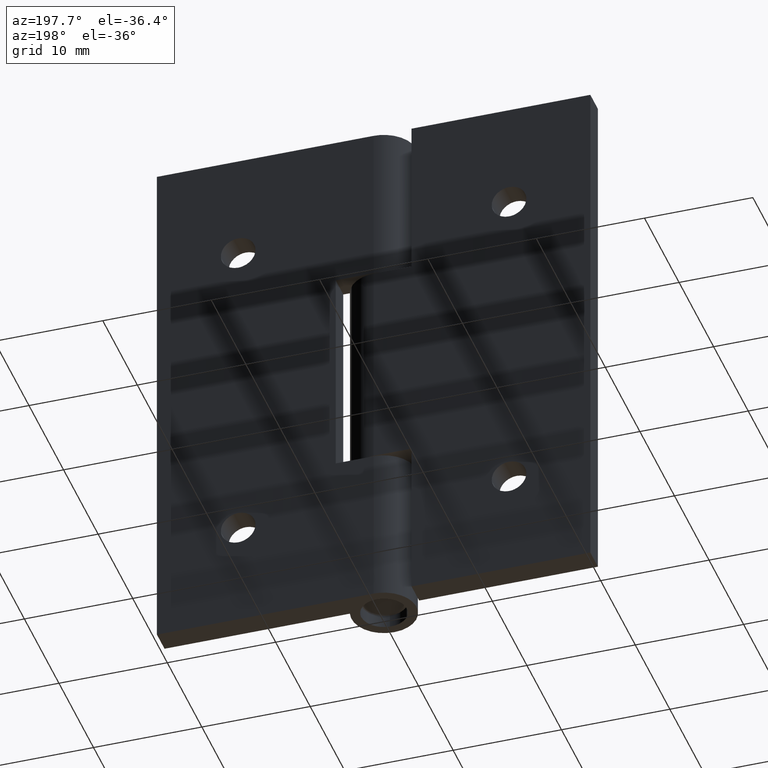
[diagram: clean part render]
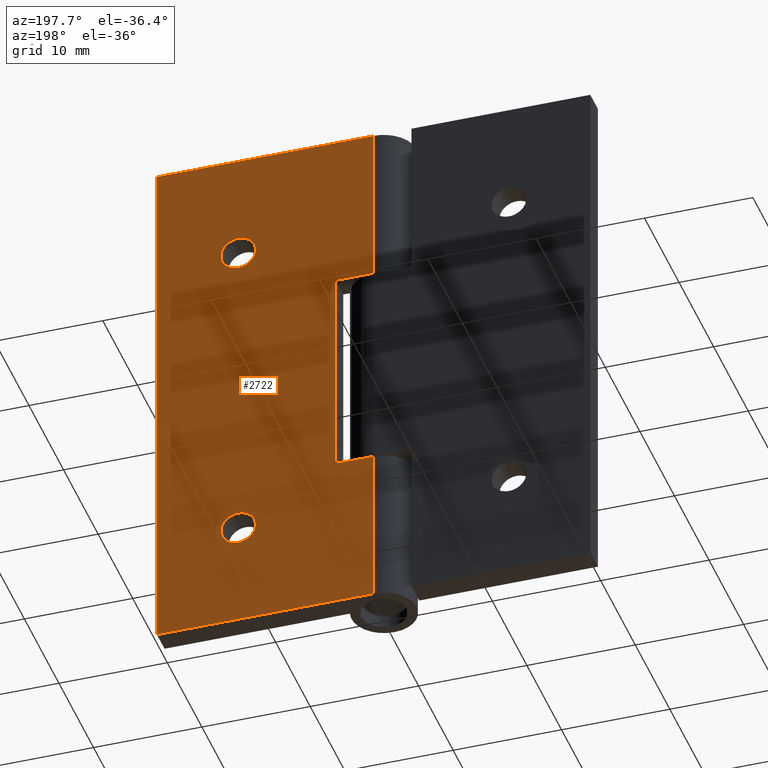
[diagram: same view with one face highlighted and labeled with its STEP entity id]
A machine part, auxiliary view. The second image highlights one B-rep face of the part: STEP entity #2722.
In plain terms, the highlighted face is a freeform B-spline surface patch.
Its self-contained STEP definition (entity closure, byte-faithful):
#2072=CARTESIAN_POINT('',(10.904932266042660,3.0,40.125534553363543));
#2073=VERTEX_POINT('',#2072);
#2079=CARTESIAN_POINT('',(12.500000000000000,3.0,41.600000000000001));
#2080=VERTEX_POINT('',#2079);
#2081=CARTESIAN_POINT('',(12.500000000000000,3.0,41.600000000000001));
#2082=CARTESIAN_POINT('',(11.020975213717009,3.000000000000000,41.600000000000001));
#2083=CARTESIAN_POINT('',(10.904932266042653,3.000000000000001,40.125534553363543));
#2091=(BOUNDED_CURVE()B_SPLINE_CURVE(2,(#2081,#2082,#2083),.UNSPECIFIED.,.F.,.U.)B_SPLINE_CURVE_WITH_KNOTS((3,3),(0.0,0.236331300589998),.UNSPECIFIED.)CURVE()GEOMETRIC_REPRESENTATION_ITEM()RATIONAL_B_SPLINE_CURVE((1.0,0.723120658655303,0.969723356082561))REPRESENTATION_ITEM(''));
#2092=EDGE_CURVE('',#2080,#2073,#2091,.T.);
#2094=CARTESIAN_POINT('',(14.095067733957340,3.0,39.874465446636457));
#2095=VERTEX_POINT('',#2094);
#2096=CARTESIAN_POINT('',(14.095067733957340,3.0,39.874465446636464));
#2097=CARTESIAN_POINT('',(14.100000000000000,3.0,39.937135828587827));
#2098=CARTESIAN_POINT('',(14.100000000000000,3.0,40.0));
#2099=CARTESIAN_POINT('',(14.100000000000001,3.0,41.600000000000001));
#2100=CARTESIAN_POINT('',(12.500000000000000,3.0,41.600000000000001));
#2108=(BOUNDED_CURVE()B_SPLINE_CURVE(2,(#2096,#2097,#2098,#2099,#2100),.UNSPECIFIED.,.F.,.U.)B_SPLINE_CURVE_WITH_KNOTS((3,2,3),(0.736331300589998,0.750000000000000,1.0),.UNSPECIFIED.)CURVE()GEOMETRIC_REPRESENTATION_ITEM()RATIONAL_B_SPLINE_CURVE((0.969723356082559,0.983986122531243,1.0,0.707106781186548,1.0))REPRESENTATION_ITEM(''));
#2109=EDGE_CURVE('',#2095,#2080,#2108,.T.);
#2185=CARTESIAN_POINT('',(12.500000000000000,3.0,38.400000000000013));
#2186=VERTEX_POINT('',#2185);
#2187=CARTESIAN_POINT('',(12.500000000000000,3.0,38.400000000000013));
#2188=CARTESIAN_POINT('',(13.979024786282988,3.000000000000000,38.400000000000006));
#2189=CARTESIAN_POINT('',(14.095067733957341,3.000000000000000,39.874465446636464));
#2197=(BOUNDED_CURVE()B_SPLINE_CURVE(2,(#2187,#2188,#2189),.UNSPECIFIED.,.F.,.U.)B_SPLINE_CURVE_WITH_KNOTS((3,3),(0.500000000000000,0.736331300589998),.UNSPECIFIED.)CURVE()GEOMETRIC_REPRESENTATION_ITEM()RATIONAL_B_SPLINE_CURVE((1.0,0.723120658655304,0.969723356082560))REPRESENTATION_ITEM(''));
#2198=EDGE_CURVE('',#2186,#2095,#2197,.T.);
#2200=CARTESIAN_POINT('',(10.904932266042655,3.000000000000000,40.125534553363536));
#2201=CARTESIAN_POINT('',(10.900000000000006,3.000000000000001,40.062864171412173));
#2202=CARTESIAN_POINT('',(10.900000000000000,3.0,40.0));
#2203=CARTESIAN_POINT('',(10.900000000000000,3.0,38.400000000000006));
#2204=CARTESIAN_POINT('',(12.500000000000000,3.0,38.400000000000013));
#2212=(BOUNDED_CURVE()B_SPLINE_CURVE(2,(#2200,#2201,#2202,#2203,#2204),.UNSPECIFIED.,.F.,.U.)B_SPLINE_CURVE_WITH_KNOTS((3,2,3),(0.236331300589998,0.250000000000000,0.500000000000000),.UNSPECIFIED.)CURVE()GEOMETRIC_REPRESENTATION_ITEM()RATIONAL_B_SPLINE_CURVE((0.969723356082561,0.983986122531244,1.0,0.707106781186548,1.0))REPRESENTATION_ITEM(''));
#2213=EDGE_CURVE('',#2073,#2186,#2212,.T.);
#2254=CARTESIAN_POINT('',(10.904932266042660,3.0,10.125534553363529));
#2255=VERTEX_POINT('',#2254);
#2261=CARTESIAN_POINT('',(12.500000000000000,3.0,11.600000000000000));
#2262=VERTEX_POINT('',#2261);
#2263=CARTESIAN_POINT('',(12.500000000000000,3.0,11.600000000000000));
#2264=CARTESIAN_POINT('',(11.020975213717012,3.0,11.600000000000001));
#2265=CARTESIAN_POINT('',(10.904932266042660,3.000000000000000,10.125534553363529));
#2273=(BOUNDED_CURVE()B_SPLINE_CURVE(2,(#2263,#2264,#2265),.UNSPECIFIED.,.F.,.U.)B_SPLINE_CURVE_WITH_KNOTS((3,3),(0.0,0.236331300589998),.UNSPECIFIED.)CURVE()GEOMETRIC_REPRESENTATION_ITEM()RATIONAL_B_SPLINE_CURVE((1.0,0.723120658655303,0.969723356082560))REPRESENTATION_ITEM(''));
#2274=EDGE_CURVE('',#2262,#2255,#2273,.T.);
#2276=CARTESIAN_POINT('',(14.095067733957350,3.0,9.874465446636471));
#2277=VERTEX_POINT('',#2276);
#2278=CARTESIAN_POINT('',(14.095067733957347,3.000000000000000,9.874465446636471));
#2279=CARTESIAN_POINT('',(14.100000000000000,3.0,9.937135828587829));
#2280=CARTESIAN_POINT('',(14.100000000000000,3.0,10.0));
#2281=CARTESIAN_POINT('',(14.100000000000001,3.0,11.600000000000001));
#2282=CARTESIAN_POINT('',(12.500000000000000,3.0,11.600000000000000));
#2290=(BOUNDED_CURVE()B_SPLINE_CURVE(2,(#2278,#2279,#2280,#2281,#2282),.UNSPECIFIED.,.F.,.U.)B_SPLINE_CURVE_WITH_KNOTS((3,2,3),(0.736331300589998,0.750000000000000,1.0),.UNSPECIFIED.)CURVE()GEOMETRIC_REPRESENTATION_ITEM()RATIONAL_B_SPLINE_CURVE((0.969723356082560,0.983986122531244,1.0,0.707106781186548,1.0))REPRESENTATION_ITEM(''));
#2291=EDGE_CURVE('',#2277,#2262,#2290,.T.);
#2367=CARTESIAN_POINT('',(12.500000000000000,3.0,8.400000000000000));
#2368=VERTEX_POINT('',#2367);
#2369=CARTESIAN_POINT('',(12.500000000000000,3.0,8.400000000000000));
#2370=CARTESIAN_POINT('',(13.979024786282988,3.000000000000000,8.400000000000000));
#2371=CARTESIAN_POINT('',(14.095067733957350,3.000000000000000,9.874465446636471));
#2379=(BOUNDED_CURVE()B_SPLINE_CURVE(2,(#2369,#2370,#2371),.UNSPECIFIED.,.F.,.U.)B_SPLINE_CURVE_WITH_KNOTS((3,3),(0.500000000000000,0.736331300589998),.UNSPECIFIED.)CURVE()GEOMETRIC_REPRESENTATION_ITEM()RATIONAL_B_SPLINE_CURVE((1.0,0.723120658655304,0.969723356082560))REPRESENTATION_ITEM(''));
#2380=EDGE_CURVE('',#2368,#2277,#2379,.T.);
#2382=CARTESIAN_POINT('',(10.904932266042659,3.000000000000000,10.125534553363529));
#2383=CARTESIAN_POINT('',(10.899999999999997,3.000000000000000,10.062864171412171));
#2384=CARTESIAN_POINT('',(10.900000000000000,3.0,10.0));
#2385=CARTESIAN_POINT('',(10.900000000000000,3.0,8.400000000000000));
#2386=CARTESIAN_POINT('',(12.500000000000000,3.0,8.400000000000000));
#2394=(BOUNDED_CURVE()B_SPLINE_CURVE(2,(#2382,#2383,#2384,#2385,#2386),.UNSPECIFIED.,.F.,.U.)B_SPLINE_CURVE_WITH_KNOTS((3,2,3),(0.236331300589998,0.250000000000000,0.500000000000000),.UNSPECIFIED.)CURVE()GEOMETRIC_REPRESENTATION_ITEM()RATIONAL_B_SPLINE_CURVE((0.969723356082561,0.983986122531244,1.0,0.707106781186548,1.0))REPRESENTATION_ITEM(''));
#2395=EDGE_CURVE('',#2255,#2368,#2394,.T.);
#2415=CARTESIAN_POINT('',(3.499999999999901,3.0,35.0));
#2416=VERTEX_POINT('',#2415);
#2422=CARTESIAN_POINT('',(3.499999999999901,3.0,15.0));
#2423=VERTEX_POINT('',#2422);
#2424=CARTESIAN_POINT('',(3.499999999999901,3.0,35.0));
#2425=CARTESIAN_POINT('',(3.499999999999901,3.0,15.0));
#2426=QUASI_UNIFORM_CURVE('',1,(#2424,#2425),.UNSPECIFIED.,.F.,.U.);
#2427=EDGE_CURVE('',#2416,#2423,#2426,.T.);
#2459=CARTESIAN_POINT('',(-5.510729E-016,3.0,50.0));
#2460=VERTEX_POINT('',#2459);
#2461=CARTESIAN_POINT('',(0.0,3.0,35.0));
#2462=VERTEX_POINT('',#2461);
#2463=CARTESIAN_POINT('',(-5.510729E-016,3.0,50.0));
#2464=CARTESIAN_POINT('',(0.0,3.0,35.0));
#2465=QUASI_UNIFORM_CURVE('',1,(#2463,#2464),.UNSPECIFIED.,.F.,.U.);
#2466=EDGE_CURVE('',#2460,#2462,#2465,.T.);
#2523=CARTESIAN_POINT('',(20.0,3.0,0.0));
#2524=VERTEX_POINT('',#2523);
#2532=CARTESIAN_POINT('',(20.0,3.0,50.0));
#2533=VERTEX_POINT('',#2532);
#2534=CARTESIAN_POINT('',(20.0,3.0,50.0));
#2535=CARTESIAN_POINT('',(20.0,3.0,0.0));
#2536=QUASI_UNIFORM_CURVE('',1,(#2534,#2535),.UNSPECIFIED.,.F.,.U.);
#2537=EDGE_CURVE('',#2533,#2524,#2536,.T.);
#2585=CARTESIAN_POINT('',(-5.510729E-016,3.0,15.0));
#2586=VERTEX_POINT('',#2585);
#2606=CARTESIAN_POINT('',(-5.510729E-016,3.0,0.0));
#2607=VERTEX_POINT('',#2606);
#2608=CARTESIAN_POINT('',(-5.510729E-016,3.0,15.0));
#2609=CARTESIAN_POINT('',(-5.510729E-016,3.0,0.0));
#2610=QUASI_UNIFORM_CURVE('',1,(#2608,#2609),.UNSPECIFIED.,.F.,.U.);
#2611=EDGE_CURVE('',#2586,#2607,#2610,.T.);
#2679=CARTESIAN_POINT('',(-0.998999961236120,3.0,-2.497499903090299));
#2680=CARTESIAN_POINT('',(-0.998999961236120,3.0,52.497501244194808));
#2681=CARTESIAN_POINT('',(20.999000497677919,3.0,-2.497499903090299));
#2682=CARTESIAN_POINT('',(20.999000497677919,3.0,52.497501244194808));
#2683=B_SPLINE_SURFACE_WITH_KNOTS('',1,1,((#2679,#2681),(#2680,#2682)),.UNSPECIFIED.,.F.,.F.,.U.,(2,2),(2,2),(0.0,54.995001147285109),(0.0,21.998000458914039),.UNSPECIFIED.);
#2684=CARTESIAN_POINT('',(0.0,3.0,35.0));
#2685=CARTESIAN_POINT('',(3.499999999999901,3.0,35.0));
#2686=QUASI_UNIFORM_CURVE('',1,(#2684,#2685),.UNSPECIFIED.,.F.,.U.);
#2687=EDGE_CURVE('',#2462,#2416,#2686,.T.);
#2688=ORIENTED_EDGE('',*,*,#2687,.F.);
#2689=ORIENTED_EDGE('',*,*,#2466,.F.);
#2690=CARTESIAN_POINT('',(-5.510729E-016,3.0,50.0));
#2691=CARTESIAN_POINT('',(20.0,3.0,50.0));
#2692=QUASI_UNIFORM_CURVE('',1,(#2690,#2691),.UNSPECIFIED.,.F.,.U.);
#2693=EDGE_CURVE('',#2460,#2533,#2692,.T.);
#2694=ORIENTED_EDGE('',*,*,#2693,.T.);
#2695=ORIENTED_EDGE('',*,*,#2537,.T.);
#2696=CARTESIAN_POINT('',(-5.510729E-016,3.0,0.0));
#2697=CARTESIAN_POINT('',(20.0,3.0,0.0));
#2698=QUASI_UNIFORM_CURVE('',1,(#2696,#2697),.UNSPECIFIED.,.F.,.U.);
#2699=EDGE_CURVE('',#2607,#2524,#2698,.T.);
#2700=ORIENTED_EDGE('',*,*,#2699,.F.);
#2701=ORIENTED_EDGE('',*,*,#2611,.F.);
#2702=CARTESIAN_POINT('',(3.499999999999901,3.0,15.0));
#2703=CARTESIAN_POINT('',(-5.510729E-016,3.0,15.0));
#2704=QUASI_UNIFORM_CURVE('',1,(#2702,#2703),.UNSPECIFIED.,.F.,.U.);
#2705=EDGE_CURVE('',#2423,#2586,#2704,.T.);
#2706=ORIENTED_EDGE('',*,*,#2705,.F.);
#2707=ORIENTED_EDGE('',*,*,#2427,.F.);
#2708=EDGE_LOOP('',(#2688,#2689,#2694,#2695,#2700,#2701,#2706,#2707));
#2709=FACE_OUTER_BOUND('',#2708,.T.);
#2710=ORIENTED_EDGE('',*,*,#2380,.T.);
#2711=ORIENTED_EDGE('',*,*,#2291,.T.);
#2712=ORIENTED_EDGE('',*,*,#2274,.T.);
#2713=ORIENTED_EDGE('',*,*,#2395,.T.);
#2714=EDGE_LOOP('',(#2710,#2711,#2712,#2713));
#2715=FACE_BOUND('',#2714,.T.);
#2716=ORIENTED_EDGE('',*,*,#2198,.T.);
#2717=ORIENTED_EDGE('',*,*,#2109,.T.);
#2718=ORIENTED_EDGE('',*,*,#2092,.T.);
#2719=ORIENTED_EDGE('',*,*,#2213,.T.);
#2720=EDGE_LOOP('',(#2716,#2717,#2718,#2719));
#2721=FACE_BOUND('',#2720,.T.);
#2722=ADVANCED_FACE('',(#2709,#2715,#2721),#2683,.T.);